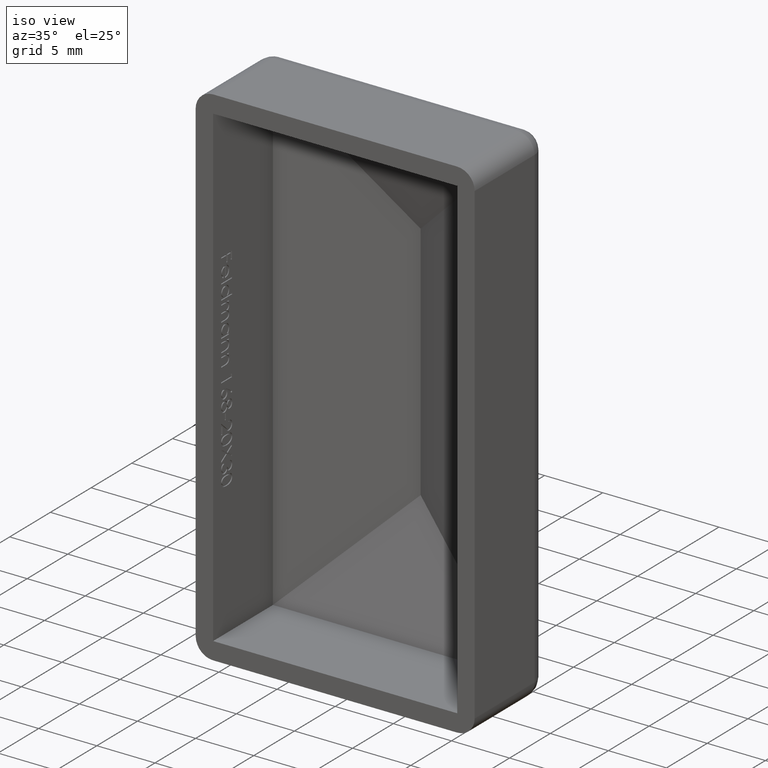
[diagram: clean part render]
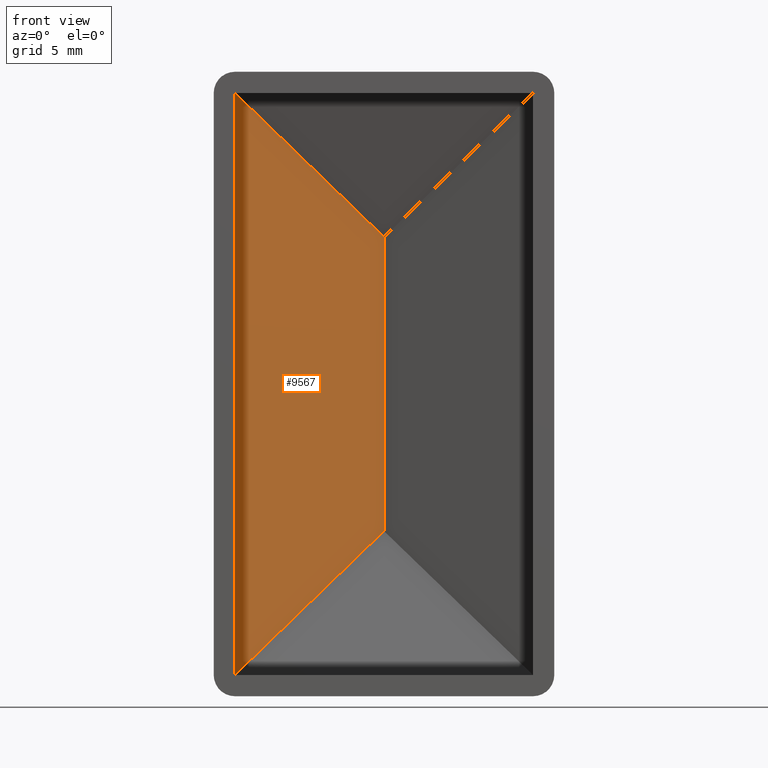
[diagram: tour spotlight — one face highlighted and labeled with its STEP entity id]
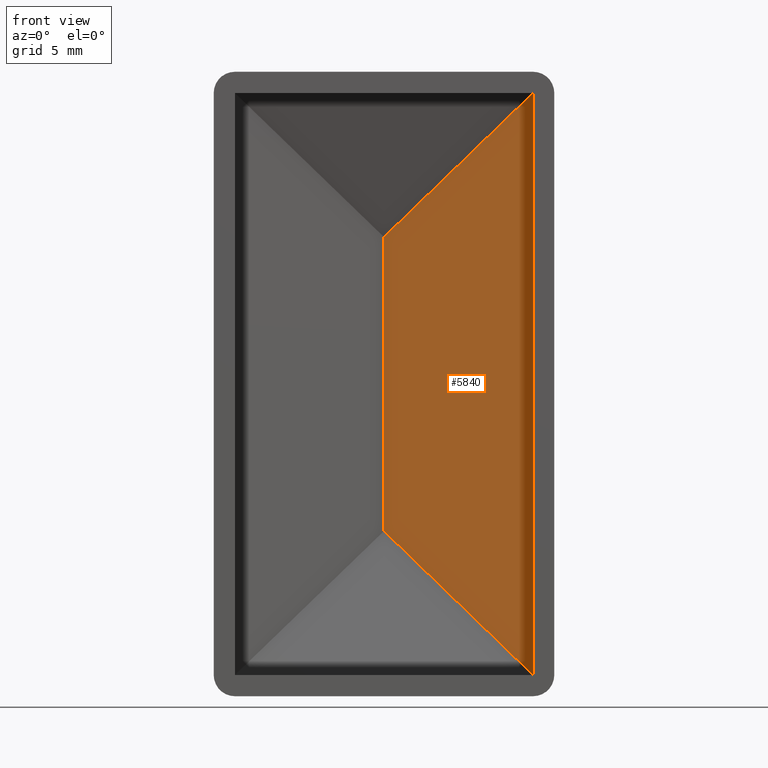
[diagram: tour spotlight — one face highlighted and labeled with its STEP entity id]
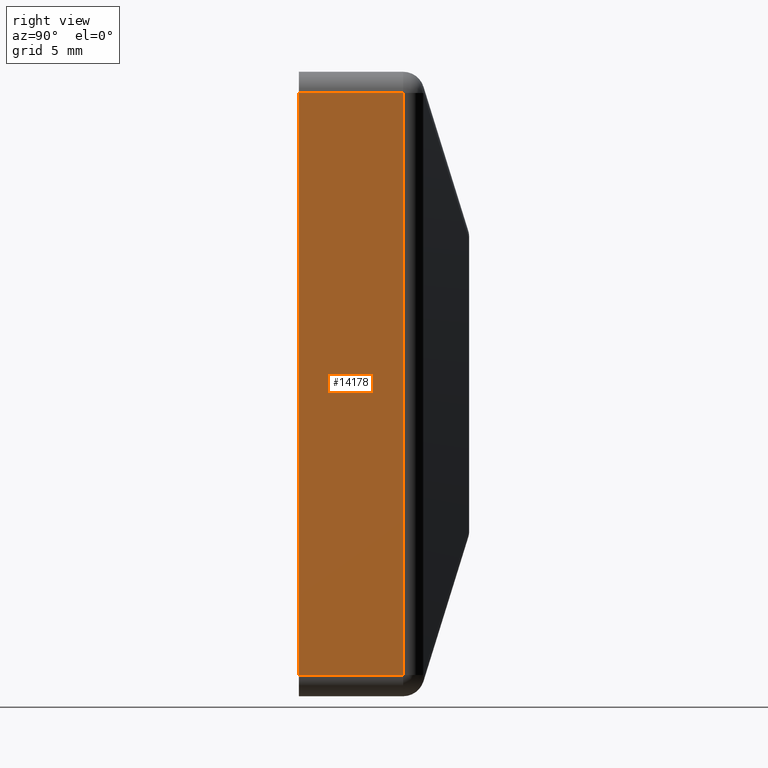
[diagram: tour spotlight — one face highlighted and labeled with its STEP entity id]
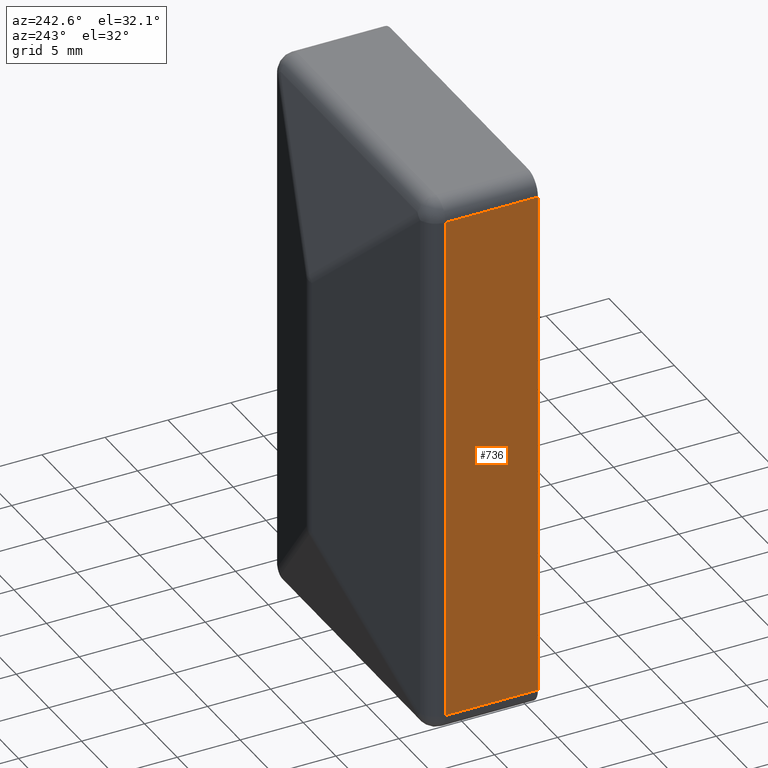
[diagram: tour spotlight — one face highlighted and labeled with its STEP entity id]
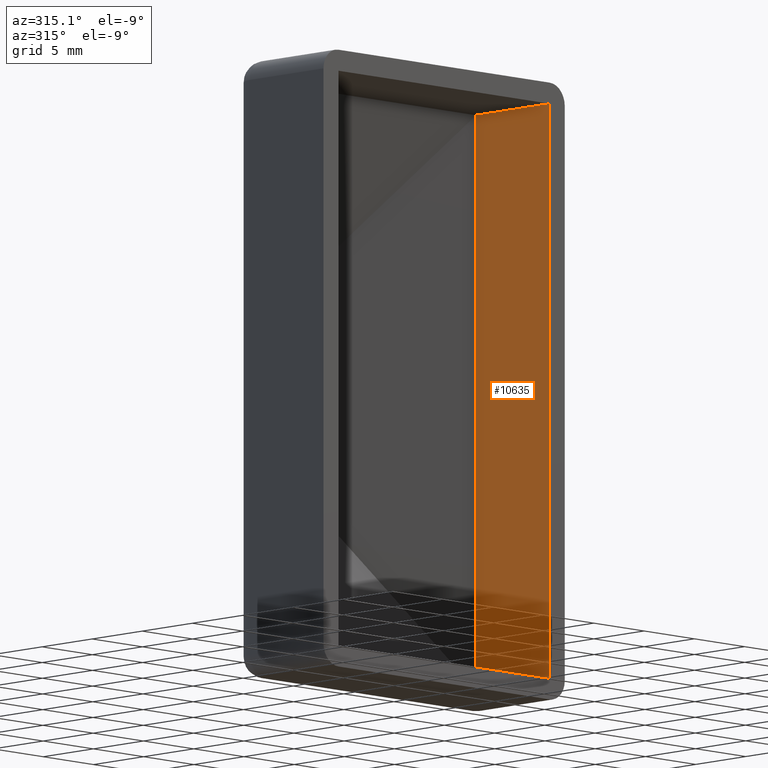
[diagram: tour spotlight — one face highlighted and labeled with its STEP entity id]
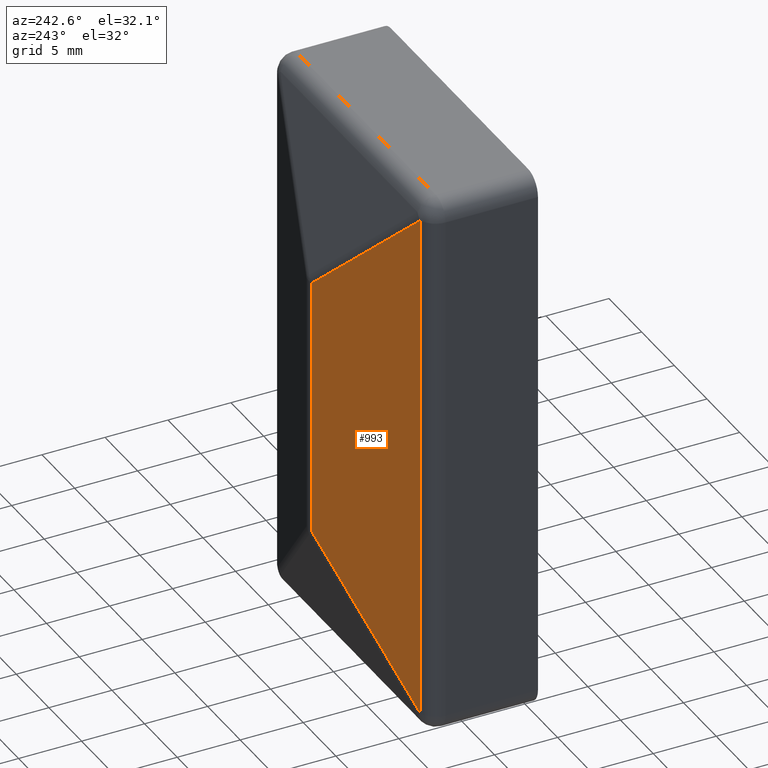
[diagram: tour spotlight — one face highlighted and labeled with its STEP entity id]
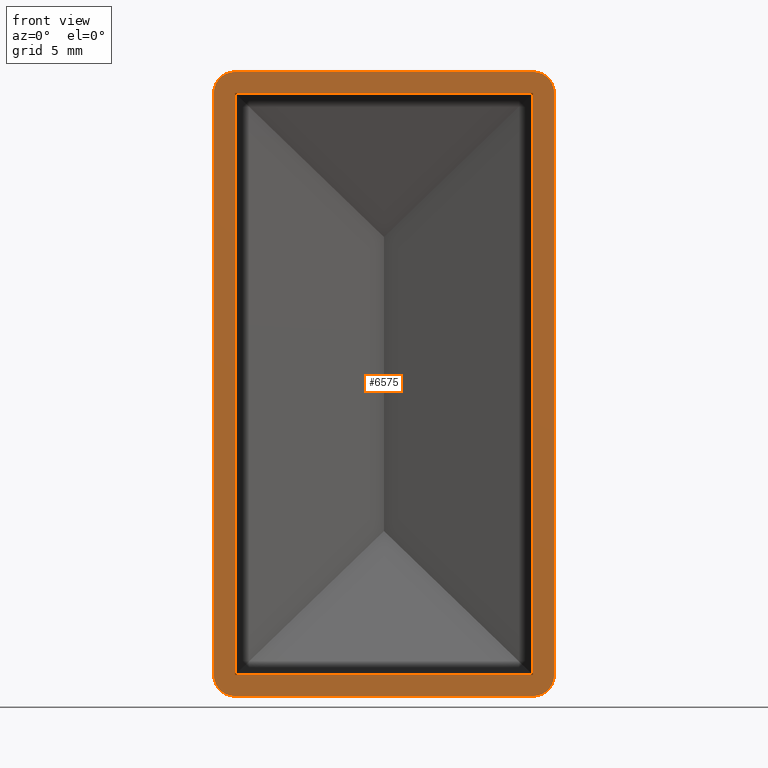
[diagram: tour spotlight — one face highlighted and labeled with its STEP entity id]
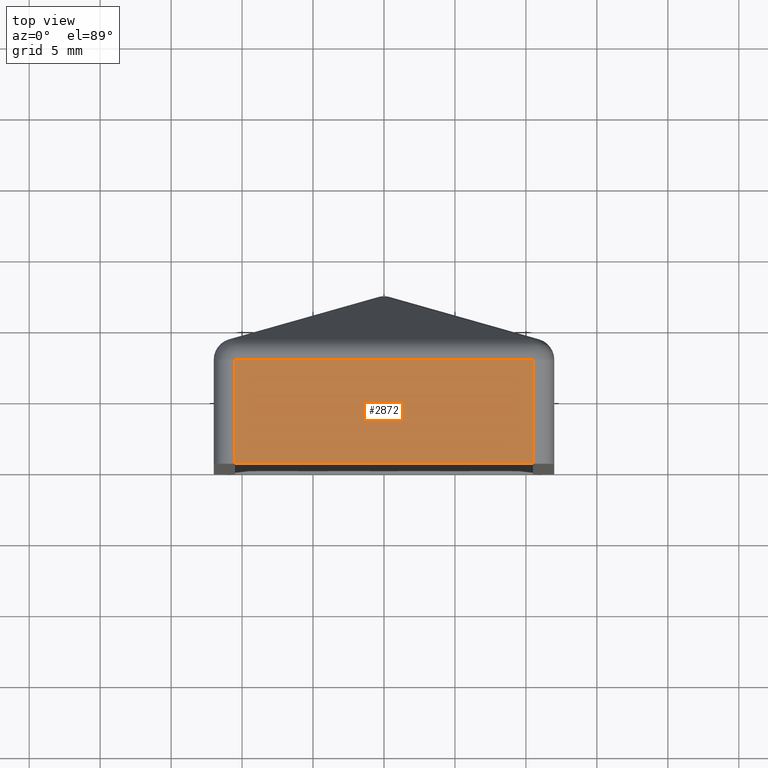
[diagram: tour spotlight — one face highlighted and labeled with its STEP entity id]
A machine part: a face-by-face anatomy tour. The part has 263 B-rep faces; the first image is the clean iso view, then the 8 largest visible faces are spotlighted one at a time (largest first), each with its STEP entity span.

Face 1 — front view, entity #9567. In plain terms, the highlighted planar face has unit normal (0.2873, -0.9578, 0).
Definition (entity closure, byte-faithful):
#183 = PLANE ( 'NONE',  #12115 ) ;
#348 = EDGE_LOOP ( 'NONE', ( #1482, #520, #5931, #13628 ) ) ;
#520 = ORIENTED_EDGE ( 'NONE', *, *, #8659, .T. ) ;
#1482 = ORIENTED_EDGE ( 'NONE', *, *, #9164, .T. ) ;
#2041 = LINE ( 'NONE', #4732, #2873 ) ;
#2142 = FACE_OUTER_BOUND ( 'NONE', #348, .T. ) ;
#2873 = VECTOR ( 'NONE', #13460, 1000.000000000000000 ) ;
#3015 = DIRECTION ( 'NONE',  ( 1.182766006347823109E-16, 3.548298019043460821E-17, 1.000000000000000000 ) ) ;
#3594 = VERTEX_POINT ( 'NONE', #13329 ) ;
#3672 = LINE ( 'NONE', #14014, #13458 ) ;
#3683 = EDGE_CURVE ( 'NONE', #5232, #5365, #2041, .T. ) ;
#3854 = CARTESIAN_POINT ( 'NONE',  ( 5.421010862427527100E-17, 10.50000000000000000, -10.35534212095575590 ) ) ;
#4273 = VERTEX_POINT ( 'NONE', #8368 ) ;
#4707 = DIRECTION ( 'NONE',  ( -0.7029955450421475627, -0.2108986635126437470, 0.6792046947566503512 ) ) ;
#4732 = CARTESIAN_POINT ( 'NONE',  ( -11.21621681187844288, 7.135134956436475662, -21.19197852606920662 ) ) ;
#5232 = VERTEX_POINT ( 'NONE', #3854 ) ;
#5365 = VERTEX_POINT ( 'NONE', #7641 ) ;
#5821 = CARTESIAN_POINT ( 'NONE',  ( -5.930432836189275747, 8.720870149143221894, 16.08507661598340022 ) ) ;
#5931 = ORIENTED_EDGE ( 'NONE', *, *, #12347, .F. ) ;
#6586 = DIRECTION ( 'NONE',  ( 0.2873478855663448295, -0.9578262852211516520, 0.000000000000000000 ) ) ;
#6597 = VECTOR ( 'NONE', #4707, 1000.000000000000000 ) ;
#6938 = LINE ( 'NONE', #5821, #6597 ) ;
#7641 = CARTESIAN_POINT ( 'NONE',  ( -10.50000000000000000, 7.350000000000007638, -20.50000000000000355 ) ) ;
#8368 = CARTESIAN_POINT ( 'NONE',  ( -10.49999999999999467, 7.350000000000009415, 20.50000000000000000 ) ) ;
#8537 = CARTESIAN_POINT ( 'NONE',  ( -10.50000000000000533, 7.350000000000005862, -22.00000000000000000 ) ) ;
#8659 = EDGE_CURVE ( 'NONE', #3594, #4273, #6938, .T. ) ;
#9164 = EDGE_CURVE ( 'NONE', #5232, #3594, #3672, .T. ) ;
#9567 = ADVANCED_FACE ( 'NONE', ( #2142 ), #183, .T. ) ;
#9648 = DIRECTION ( 'NONE',  ( 0.000000000000000000, 0.000000000000000000, 1.000000000000000000 ) ) ;
#9972 = VECTOR ( 'NONE', #3015, 1000.000000000000000 ) ;
#10486 = LINE ( 'NONE', #8537, #9972 ) ;
#12115 = AXIS2_PLACEMENT_3D ( 'NONE', #13347, #6586, #13260 ) ;
#12347 = EDGE_CURVE ( 'NONE', #5365, #4273, #10486, .T. ) ;
#13260 = DIRECTION ( 'NONE',  ( 0.9578262852211515410, 0.2873478855663447740, 0.000000000000000000 ) ) ;
#13329 = CARTESIAN_POINT ( 'NONE',  ( 2.710505431213761085E-16, 10.50000000000000000, 10.35534212095575413 ) ) ;
#13347 = CARTESIAN_POINT ( 'NONE',  ( -10.49999999999998401, 7.350000000000012967, -22.00000000000000000 ) ) ;
#13458 = VECTOR ( 'NONE', #9648, 1000.000000000000000 ) ;
#13460 = DIRECTION ( 'NONE',  ( -0.7029955450421475627, -0.2108986635126437470, -0.6792046947566503512 ) ) ;
#13628 = ORIENTED_EDGE ( 'NONE', *, *, #3683, .F. ) ;
#14014 = CARTESIAN_POINT ( 'NONE',  ( 3.794707603699265519E-16, 10.50000000000000000, -22.00000000000000000 ) ) ;

Face 2 — front view, entity #5840. In plain terms, the highlighted planar face has unit normal (-0.2873, -0.9578, 0).
Definition (entity closure, byte-faithful):
#655 = EDGE_CURVE ( 'NONE', #5232, #2281, #2084, .T. ) ;
#879 = PLANE ( 'NONE',  #5274 ) ;
#1921 = VECTOR ( 'NONE', #11626, 1000.000000000000000 ) ;
#2084 = LINE ( 'NONE', #8011, #6867 ) ;
#2195 = VECTOR ( 'NONE', #5997, 1000.000000000000114 ) ;
#2265 = LINE ( 'NONE', #9362, #1921 ) ;
#2281 = VERTEX_POINT ( 'NONE', #12252 ) ;
#2866 = DIRECTION ( 'NONE',  ( 0.9578262852211515410, -0.2873478855663447185, 0.000000000000000000 ) ) ;
#2984 = ORIENTED_EDGE ( 'NONE', *, *, #9164, .F. ) ;
#3465 = VERTEX_POINT ( 'NONE', #12321 ) ;
#3594 = VERTEX_POINT ( 'NONE', #13329 ) ;
#3672 = LINE ( 'NONE', #14014, #13458 ) ;
#3854 = CARTESIAN_POINT ( 'NONE',  ( 5.421010862427527100E-17, 10.50000000000000000, -10.35534212095575590 ) ) ;
#5085 = LINE ( 'NONE', #6870, #2195 ) ;
#5232 = VERTEX_POINT ( 'NONE', #3854 ) ;
#5274 = AXIS2_PLACEMENT_3D ( 'NONE', #10629, #11834, #2866 ) ;
#5840 = ADVANCED_FACE ( 'NONE', ( #6120 ), #879, .T. ) ;
#5997 = DIRECTION ( 'NONE',  ( 0.7029955450421475627, -0.2108986635126437192, 0.6792046947566503512 ) ) ;
#6120 = FACE_OUTER_BOUND ( 'NONE', #13184, .T. ) ;
#6174 = EDGE_CURVE ( 'NONE', #3594, #3465, #5085, .T. ) ;
#6867 = VECTOR ( 'NONE', #12522, 1000.000000000000114 ) ;
#6870 = CARTESIAN_POINT ( 'NONE',  ( -15.44895998740508780, 15.13468799622151550, -4.570792513260271583 ) ) ;
#8011 = CARTESIAN_POINT ( 'NONE',  ( -0.6195615678548944683, 10.68586847035646947, -9.756747821823166689 ) ) ;
#9164 = EDGE_CURVE ( 'NONE', #5232, #3594, #3672, .T. ) ;
#9362 = CARTESIAN_POINT ( 'NONE',  ( 10.49999999999999645, 7.350000000000009415, -22.00000000000000000 ) ) ;
#9648 = DIRECTION ( 'NONE',  ( 0.000000000000000000, 0.000000000000000000, 1.000000000000000000 ) ) ;
#10075 = ORIENTED_EDGE ( 'NONE', *, *, #6174, .F. ) ;
#10629 = CARTESIAN_POINT ( 'NONE',  ( 3.794707603699265519E-16, 10.50000000000000000, -22.00000000000000000 ) ) ;
#10661 = ORIENTED_EDGE ( 'NONE', *, *, #655, .T. ) ;
#11626 = DIRECTION ( 'NONE',  ( 7.885106708985487801E-17, -2.365532012695639931E-17, 1.000000000000000000 ) ) ;
#11834 = DIRECTION ( 'NONE',  ( -0.2873478855663447740, -0.9578262852211516520, 0.000000000000000000 ) ) ;
#12252 = CARTESIAN_POINT ( 'NONE',  ( 10.49999999999999467, 7.350000000000011191, -20.50000000000000000 ) ) ;
#12321 = CARTESIAN_POINT ( 'NONE',  ( 10.49999999999999645, 7.350000000000009415, 20.50000000000000355 ) ) ;
#12522 = DIRECTION ( 'NONE',  ( 0.7029955450421475627, -0.2108986635126437192, -0.6792046947566503512 ) ) ;
#13184 = EDGE_LOOP ( 'NONE', ( #14090, #10075, #2984, #10661 ) ) ;
#13329 = CARTESIAN_POINT ( 'NONE',  ( 2.710505431213761085E-16, 10.50000000000000000, 10.35534212095575413 ) ) ;
#13458 = VECTOR ( 'NONE', #9648, 1000.000000000000000 ) ;
#14014 = CARTESIAN_POINT ( 'NONE',  ( 3.794707603699265519E-16, 10.50000000000000000, -22.00000000000000000 ) ) ;
#14090 = ORIENTED_EDGE ( 'NONE', *, *, #14149, .T. ) ;
#14149 = EDGE_CURVE ( 'NONE', #2281, #3465, #2265, .T. ) ;

Face 3 — right view, entity #14178. In plain terms, the highlighted planar face has unit normal (-1, 0, 0).
Definition (entity closure, byte-faithful):
#62 = VECTOR ( 'NONE', #6354, 1000.000000000000000 ) ;
#1163 = EDGE_CURVE ( 'NONE', #10963, #5137, #9088, .T. ) ;
#1818 = VERTEX_POINT ( 'NONE', #5347 ) ;
#1966 = VERTEX_POINT ( 'NONE', #12222 ) ;
#2101 = LINE ( 'NONE', #6574, #6545 ) ;
#3578 = ORIENTED_EDGE ( 'NONE', *, *, #13288, .T. ) ;
#3805 = ORIENTED_EDGE ( 'NONE', *, *, #1163, .T. ) ;
#4552 = LINE ( 'NONE', #9276, #14124 ) ;
#4594 = AXIS2_PLACEMENT_3D ( 'NONE', #11679, #11732, #10522 ) ;
#5137 = VERTEX_POINT ( 'NONE', #11985 ) ;
#5341 = CARTESIAN_POINT ( 'NONE',  ( 11.99999999999999645, 0.000000000000000000, -22.00000000000000000 ) ) ;
#5347 = CARTESIAN_POINT ( 'NONE',  ( 12.00000000000001954, 7.350000000000001421, 20.49999999999999645 ) ) ;
#6354 = DIRECTION ( 'NONE',  ( -7.885106708985487801E-17, -0.000000000000000000, -1.000000000000000000 ) ) ;
#6367 = FACE_OUTER_BOUND ( 'NONE', #6447, .T. ) ;
#6447 = EDGE_LOOP ( 'NONE', ( #14118, #3805, #3578, #10888 ) ) ;
#6545 = VECTOR ( 'NONE', #12154, 1000.000000000000000 ) ;
#6556 = LINE ( 'NONE', #5341, #62 ) ;
#6574 = CARTESIAN_POINT ( 'NONE',  ( 12.00000000000001954, 7.350000000000001421, -22.00000000000000000 ) ) ;
#8096 = DIRECTION ( 'NONE',  ( 0.000000000000000000, -1.000000000000000000, 0.000000000000000000 ) ) ;
#9088 = LINE ( 'NONE', #10307, #14056 ) ;
#9276 = CARTESIAN_POINT ( 'NONE',  ( 12.00000000000000000, 30.00000000000000000, 20.49999999999999645 ) ) ;
#10000 = EDGE_CURVE ( 'NONE', #1818, #1966, #4552, .T. ) ;
#10307 = CARTESIAN_POINT ( 'NONE',  ( 11.99999999999999645, 30.00000000000000000, -20.49999999999999645 ) ) ;
#10522 = DIRECTION ( 'NONE',  ( 7.885106708985487801E-17, 0.000000000000000000, 1.000000000000000000 ) ) ;
#10574 = PLANE ( 'NONE',  #4594 ) ;
#10575 = CARTESIAN_POINT ( 'NONE',  ( 11.99999999999999645, 0.000000000000000000, -20.49999999999999645 ) ) ;
#10888 = ORIENTED_EDGE ( 'NONE', *, *, #10000, .T. ) ;
#10963 = VERTEX_POINT ( 'NONE', #10575 ) ;
#11679 = CARTESIAN_POINT ( 'NONE',  ( 11.99999999999999645, 30.00000000000000000, -22.00000000000000000 ) ) ;
#11732 = DIRECTION ( 'NONE',  ( -1.000000000000000000, 0.000000000000000000, 7.885106708985487801E-17 ) ) ;
#11985 = CARTESIAN_POINT ( 'NONE',  ( 12.00000000000001954, 7.350000000000001421, -20.49999999999999645 ) ) ;
#12154 = DIRECTION ( 'NONE',  ( -0.000000000000000000, -0.000000000000000000, 1.000000000000000000 ) ) ;
#12222 = CARTESIAN_POINT ( 'NONE',  ( 12.00000000000000000, 0.000000000000000000, 20.49999999999999645 ) ) ;
#12876 = EDGE_CURVE ( 'NONE', #1966, #10963, #6556, .T. ) ;
#13288 = EDGE_CURVE ( 'NONE', #5137, #1818, #2101, .T. ) ;
#13429 = DIRECTION ( 'NONE',  ( -0.000000000000000000, 1.000000000000000000, -0.000000000000000000 ) ) ;
#14056 = VECTOR ( 'NONE', #13429, 1000.000000000000000 ) ;
#14118 = ORIENTED_EDGE ( 'NONE', *, *, #12876, .T. ) ;
#14124 = VECTOR ( 'NONE', #8096, 1000.000000000000000 ) ;
#14178 = ADVANCED_FACE ( 'NONE', ( #6367 ), #10574, .F. ) ;

Face 4 — auxiliary view, entity #736. In plain terms, the highlighted planar face has unit normal (1, 0, -0).
Definition (entity closure, byte-faithful):
#190 = VECTOR ( 'NONE', #5617, 1000.000000000000000 ) ;
#447 = CARTESIAN_POINT ( 'NONE',  ( -11.99999999999998224, 7.350000000000012967, 20.49999999999999645 ) ) ;
#736 = ADVANCED_FACE ( 'NONE', ( #6358 ), #1501, .F. ) ;
#849 = ORIENTED_EDGE ( 'NONE', *, *, #1514, .T. ) ;
#1098 = ORIENTED_EDGE ( 'NONE', *, *, #10812, .T. ) ;
#1501 = PLANE ( 'NONE',  #9888 ) ;
#1514 = EDGE_CURVE ( 'NONE', #2850, #3690, #1562, .T. ) ;
#1562 = LINE ( 'NONE', #5466, #190 ) ;
#1823 = LINE ( 'NONE', #13778, #9175 ) ;
#2439 = ORIENTED_EDGE ( 'NONE', *, *, #3861, .F. ) ;
#2606 = CARTESIAN_POINT ( 'NONE',  ( -12.00000000000000533, 0.000000000000000000, -20.49999999999999645 ) ) ;
#2676 = CARTESIAN_POINT ( 'NONE',  ( -12.00000000000000000, 30.00000000000000000, 20.49999999999999645 ) ) ;
#2850 = VERTEX_POINT ( 'NONE', #2606 ) ;
#3690 = VERTEX_POINT ( 'NONE', #12519 ) ;
#3861 = EDGE_CURVE ( 'NONE', #6983, #4203, #10418, .T. ) ;
#4203 = VERTEX_POINT ( 'NONE', #447 ) ;
#5112 = CARTESIAN_POINT ( 'NONE',  ( -11.99999999999998224, 7.350000000000012967, -20.49999999999999645 ) ) ;
#5466 = CARTESIAN_POINT ( 'NONE',  ( -12.00000000000000533, 0.000000000000000000, -22.00000000000000000 ) ) ;
#5617 = DIRECTION ( 'NONE',  ( 1.182766006347823109E-16, 0.000000000000000000, 1.000000000000000000 ) ) ;
#5980 = DIRECTION ( 'NONE',  ( -1.182766006347823109E-16, 0.000000000000000000, -1.000000000000000000 ) ) ;
#6358 = FACE_OUTER_BOUND ( 'NONE', #9540, .T. ) ;
#6983 = VERTEX_POINT ( 'NONE', #5112 ) ;
#7219 = DIRECTION ( 'NONE',  ( 0.000000000000000000, -1.000000000000000000, 0.000000000000000000 ) ) ;
#8576 = EDGE_CURVE ( 'NONE', #6983, #2850, #1823, .T. ) ;
#9175 = VECTOR ( 'NONE', #7219, 1000.000000000000000 ) ;
#9409 = DIRECTION ( 'NONE',  ( 1.000000000000000000, 0.000000000000000000, -1.182766006347823109E-16 ) ) ;
#9540 = EDGE_LOOP ( 'NONE', ( #2439, #13882, #849, #1098 ) ) ;
#9888 = AXIS2_PLACEMENT_3D ( 'NONE', #13832, #9409, #5980 ) ;
#9941 = CARTESIAN_POINT ( 'NONE',  ( -11.99999999999998224, 7.350000000000012967, -22.00000000000000000 ) ) ;
#10084 = DIRECTION ( 'NONE',  ( -0.000000000000000000, -0.000000000000000000, 1.000000000000000000 ) ) ;
#10418 = LINE ( 'NONE', #9941, #13019 ) ;
#10812 = EDGE_CURVE ( 'NONE', #3690, #4203, #11390, .T. ) ;
#11390 = LINE ( 'NONE', #2676, #13761 ) ;
#11627 = DIRECTION ( 'NONE',  ( -0.000000000000000000, 1.000000000000000000, -0.000000000000000000 ) ) ;
#12519 = CARTESIAN_POINT ( 'NONE',  ( -12.00000000000000000, 0.000000000000000000, 20.49999999999999645 ) ) ;
#13019 = VECTOR ( 'NONE', #10084, 1000.000000000000000 ) ;
#13761 = VECTOR ( 'NONE', #11627, 1000.000000000000000 ) ;
#13778 = CARTESIAN_POINT ( 'NONE',  ( -12.00000000000000533, 30.00000000000000000, -20.49999999999999645 ) ) ;
#13832 = CARTESIAN_POINT ( 'NONE',  ( -12.00000000000000533, 30.00000000000000000, -22.00000000000000000 ) ) ;
#13882 = ORIENTED_EDGE ( 'NONE', *, *, #8576, .T. ) ;

Face 5 — auxiliary view, entity #10635. In plain terms, the highlighted planar face has unit normal (-1, 0, 0).
Definition (entity closure, byte-faithful):
#233 = EDGE_CURVE ( 'NONE', #3465, #5126, #9954, .T. ) ;
#1539 = DIRECTION ( 'NONE',  ( 0.000000000000000000, -1.000000000000000000, 0.000000000000000000 ) ) ;
#1702 = CARTESIAN_POINT ( 'NONE',  ( 10.50000000000000000, 30.00000000000000000, 20.49999999999999645 ) ) ;
#1742 = CARTESIAN_POINT ( 'NONE',  ( 10.49999999999999645, 0.000000000000000000, -20.49999999999999645 ) ) ;
#1921 = VECTOR ( 'NONE', #11626, 1000.000000000000000 ) ;
#1935 = DIRECTION ( 'NONE',  ( 0.000000000000000000, -1.000000000000000000, 0.000000000000000000 ) ) ;
#2019 = AXIS2_PLACEMENT_3D ( 'NONE', #6570, #7539, #3110 ) ;
#2057 = ORIENTED_EDGE ( 'NONE', *, *, #6070, .F. ) ;
#2265 = LINE ( 'NONE', #9362, #1921 ) ;
#2281 = VERTEX_POINT ( 'NONE', #12252 ) ;
#2386 = VERTEX_POINT ( 'NONE', #1742 ) ;
#3110 = DIRECTION ( 'NONE',  ( 7.885106708985487801E-17, 0.000000000000000000, 1.000000000000000000 ) ) ;
#3276 = VECTOR ( 'NONE', #1935, 1000.000000000000000 ) ;
#3465 = VERTEX_POINT ( 'NONE', #12321 ) ;
#3528 = VECTOR ( 'NONE', #1539, 1000.000000000000000 ) ;
#4081 = ORIENTED_EDGE ( 'NONE', *, *, #233, .F. ) ;
#5126 = VERTEX_POINT ( 'NONE', #11930 ) ;
#5419 = ORIENTED_EDGE ( 'NONE', *, *, #8516, .T. ) ;
#5793 = LINE ( 'NONE', #11011, #6479 ) ;
#6070 = EDGE_CURVE ( 'NONE', #5126, #2386, #5793, .T. ) ;
#6112 = ORIENTED_EDGE ( 'NONE', *, *, #14149, .F. ) ;
#6438 = LINE ( 'NONE', #12641, #3528 ) ;
#6479 = VECTOR ( 'NONE', #13121, 1000.000000000000000 ) ;
#6570 = CARTESIAN_POINT ( 'NONE',  ( 10.49999999999999645, 30.00000000000000000, -22.00000000000000000 ) ) ;
#7539 = DIRECTION ( 'NONE',  ( -1.000000000000000000, 0.000000000000000000, 7.885106708985487801E-17 ) ) ;
#8516 = EDGE_CURVE ( 'NONE', #2281, #2386, #6438, .T. ) ;
#9362 = CARTESIAN_POINT ( 'NONE',  ( 10.49999999999999645, 7.350000000000009415, -22.00000000000000000 ) ) ;
#9954 = LINE ( 'NONE', #1702, #3276 ) ;
#10635 = ADVANCED_FACE ( 'NONE', ( #13939 ), #12048, .T. ) ;
#11011 = CARTESIAN_POINT ( 'NONE',  ( 10.49999999999999645, 0.000000000000000000, -22.00000000000000000 ) ) ;
#11626 = DIRECTION ( 'NONE',  ( 7.885106708985487801E-17, -2.365532012695639931E-17, 1.000000000000000000 ) ) ;
#11768 = EDGE_LOOP ( 'NONE', ( #2057, #4081, #6112, #5419 ) ) ;
#11930 = CARTESIAN_POINT ( 'NONE',  ( 10.50000000000000000, 0.000000000000000000, 20.49999999999999645 ) ) ;
#12048 = PLANE ( 'NONE',  #2019 ) ;
#12252 = CARTESIAN_POINT ( 'NONE',  ( 10.49999999999999467, 7.350000000000011191, -20.50000000000000000 ) ) ;
#12321 = CARTESIAN_POINT ( 'NONE',  ( 10.49999999999999645, 7.350000000000009415, 20.50000000000000355 ) ) ;
#12641 = CARTESIAN_POINT ( 'NONE',  ( 10.49999999999999645, 30.00000000000000000, -20.49999999999999645 ) ) ;
#13121 = DIRECTION ( 'NONE',  ( -7.885106708985487801E-17, 0.000000000000000000, -1.000000000000000000 ) ) ;
#13939 = FACE_OUTER_BOUND ( 'NONE', #11768, .T. ) ;
#14149 = EDGE_CURVE ( 'NONE', #2281, #3465, #2265, .T. ) ;

Face 6 — auxiliary view, entity #993. In plain terms, the highlighted planar face has unit normal (0.2873, -0.9578, 0).
Definition (entity closure, byte-faithful):
#132 = DIRECTION ( 'NONE',  ( 0.9578262852211515410, 0.2873478855663447740, 0.000000000000000000 ) ) ;
#638 = CARTESIAN_POINT ( 'NONE',  ( -0.4310218283495166891, 11.93673942783172848, -10.35534212095575590 ) ) ;
#993 = ADVANCED_FACE ( 'NONE', ( #2571 ), #11149, .F. ) ;
#1014 = DIRECTION ( 'NONE',  ( -0.000000000000000000, -0.000000000000000000, 1.000000000000000000 ) ) ;
#1285 = VERTEX_POINT ( 'NONE', #638 ) ;
#1484 = VECTOR ( 'NONE', #12670, 1000.000000000000000 ) ;
#1697 = CARTESIAN_POINT ( 'NONE',  ( 9.361787841540055055, 14.87458232879859388, 0.8939417613723181777 ) ) ;
#1845 = CARTESIAN_POINT ( 'NONE',  ( -0.4310218283495175218, 11.93673942783172848, -22.00000000000000000 ) ) ;
#2353 = ORIENTED_EDGE ( 'NONE', *, *, #3319, .T. ) ;
#2571 = FACE_OUTER_BOUND ( 'NONE', #3858, .T. ) ;
#3319 = EDGE_CURVE ( 'NONE', #7283, #3575, #9063, .T. ) ;
#3500 = VERTEX_POINT ( 'NONE', #7028 ) ;
#3575 = VERTEX_POINT ( 'NONE', #12236 ) ;
#3858 = EDGE_LOOP ( 'NONE', ( #10729, #6900, #12097, #2353 ) ) ;
#4975 = CARTESIAN_POINT ( 'NONE',  ( -11.64723864022795929, 8.571874384268204139, -21.19197852606920662 ) ) ;
#5024 = DIRECTION ( 'NONE',  ( -0.000000000000000000, -0.000000000000000000, 1.000000000000000000 ) ) ;
#5383 = CARTESIAN_POINT ( 'NONE',  ( -10.93102182834950042, 8.786739427831740556, 20.49999999999998224 ) ) ;
#6047 = LINE ( 'NONE', #1845, #7608 ) ;
#6076 = EDGE_CURVE ( 'NONE', #3500, #7283, #10576, .T. ) ;
#6766 = CARTESIAN_POINT ( 'NONE',  ( -10.93102182834950042, 8.786739427831740556, -22.00000000000000000 ) ) ;
#6900 = ORIENTED_EDGE ( 'NONE', *, *, #7943, .T. ) ;
#7028 = CARTESIAN_POINT ( 'NONE',  ( -10.93102182834950042, 8.786739427831740556, -20.49999999999999645 ) ) ;
#7135 = AXIS2_PLACEMENT_3D ( 'NONE', #6766, #8894, #132 ) ;
#7283 = VERTEX_POINT ( 'NONE', #5383 ) ;
#7330 = VECTOR ( 'NONE', #1014, 1000.000000000000000 ) ;
#7608 = VECTOR ( 'NONE', #5024, 1000.000000000000000 ) ;
#7943 = EDGE_CURVE ( 'NONE', #1285, #3500, #11086, .T. ) ;
#8894 = DIRECTION ( 'NONE',  ( 0.2873478855663448295, -0.9578262852211516520, 0.000000000000000000 ) ) ;
#9063 = LINE ( 'NONE', #1697, #14204 ) ;
#10393 = EDGE_CURVE ( 'NONE', #1285, #3575, #6047, .T. ) ;
#10576 = LINE ( 'NONE', #14100, #7330 ) ;
#10729 = ORIENTED_EDGE ( 'NONE', *, *, #10393, .F. ) ;
#11086 = LINE ( 'NONE', #4975, #1484 ) ;
#11149 = PLANE ( 'NONE',  #7135 ) ;
#11503 = DIRECTION ( 'NONE',  ( 0.7029955450421475627, 0.2108986635126437470, -0.6792046947566503512 ) ) ;
#12097 = ORIENTED_EDGE ( 'NONE', *, *, #6076, .T. ) ;
#12236 = CARTESIAN_POINT ( 'NONE',  ( -0.4310218283495175773, 11.93673942783172848, 10.35534212095574169 ) ) ;
#12670 = DIRECTION ( 'NONE',  ( -0.7029955450421475627, -0.2108986635126437470, -0.6792046947566503512 ) ) ;
#14100 = CARTESIAN_POINT ( 'NONE',  ( -10.93102182834950042, 8.786739427831740556, -22.00000000000000000 ) ) ;
#14204 = VECTOR ( 'NONE', #11503, 1000.000000000000000 ) ;

Face 7 — front view, entity #6575. In plain terms, the highlighted planar face has unit normal (0, 1, 0).
Definition (entity closure, byte-faithful):
#62 = VECTOR ( 'NONE', #6354, 1000.000000000000000 ) ;
#66 = CIRCLE ( 'NONE', #11996, 1.500000000000001332 ) ;
#190 = VECTOR ( 'NONE', #5617, 1000.000000000000000 ) ;
#261 = VERTEX_POINT ( 'NONE', #12917 ) ;
#359 = CIRCLE ( 'NONE', #9531, 1.500000000000001332 ) ;
#480 = ORIENTED_EDGE ( 'NONE', *, *, #6070, .T. ) ;
#557 = DIRECTION ( 'NONE',  ( 1.000000000000000000, 0.000000000000000000, 0.000000000000000000 ) ) ;
#1138 = CARTESIAN_POINT ( 'NONE',  ( -12.00000000000000533, 0.000000000000000000, -20.49999999999999645 ) ) ;
#1180 = FACE_BOUND ( 'NONE', #4328, .T. ) ;
#1514 = EDGE_CURVE ( 'NONE', #2850, #3690, #1562, .T. ) ;
#1562 = LINE ( 'NONE', #5466, #190 ) ;
#1606 = DIRECTION ( 'NONE',  ( 0.000000000000000000, 0.000000000000000000, 1.000000000000000000 ) ) ;
#1742 = CARTESIAN_POINT ( 'NONE',  ( 10.49999999999999645, 0.000000000000000000, -20.49999999999999645 ) ) ;
#1794 = DIRECTION ( 'NONE',  ( 2.312964634635740689E-15, 0.000000000000000000, 1.000000000000000000 ) ) ;
#1889 = CARTESIAN_POINT ( 'NONE',  ( 10.50000000000000000, 0.000000000000000000, 20.49999999999999645 ) ) ;
#1928 = VERTEX_POINT ( 'NONE', #3443 ) ;
#1966 = VERTEX_POINT ( 'NONE', #12222 ) ;
#2207 = CARTESIAN_POINT ( 'NONE',  ( 10.49999999999999645, 0.000000000000000000, -20.49999999999999645 ) ) ;
#2211 = EDGE_CURVE ( 'NONE', #3696, #1928, #8220, .T. ) ;
#2386 = VERTEX_POINT ( 'NONE', #1742 ) ;
#2403 = EDGE_CURVE ( 'NONE', #2850, #261, #359, .T. ) ;
#2446 = CARTESIAN_POINT ( 'NONE',  ( -10.50000000000000533, 0.000000000000000000, -20.49999999999999645 ) ) ;
#2606 = CARTESIAN_POINT ( 'NONE',  ( -12.00000000000000533, 0.000000000000000000, -20.49999999999999645 ) ) ;
#2655 = EDGE_CURVE ( 'NONE', #2386, #3696, #10985, .T. ) ;
#2850 = VERTEX_POINT ( 'NONE', #2606 ) ;
#2977 = DIRECTION ( 'NONE',  ( -0.000000000000000000, -1.000000000000000000, -0.000000000000000000 ) ) ;
#3027 = ORIENTED_EDGE ( 'NONE', *, *, #13071, .F. ) ;
#3298 = DIRECTION ( 'NONE',  ( 0.000000000000000000, 0.000000000000000000, 1.000000000000000000 ) ) ;
#3443 = CARTESIAN_POINT ( 'NONE',  ( -10.50000000000000000, 0.000000000000000000, 20.49999999999999645 ) ) ;
#3467 = VECTOR ( 'NONE', #557, 1000.000000000000000 ) ;
#3547 = FACE_OUTER_BOUND ( 'NONE', #8363, .T. ) ;
#3690 = VERTEX_POINT ( 'NONE', #12519 ) ;
#3696 = VERTEX_POINT ( 'NONE', #2446 ) ;
#4328 = EDGE_LOOP ( 'NONE', ( #480, #7653, #8259, #6244 ) ) ;
#4587 = EDGE_CURVE ( 'NONE', #6707, #3690, #66, .T. ) ;
#4596 = CARTESIAN_POINT ( 'NONE',  ( 0.000000000000000000, 0.000000000000000000, 0.000000000000000000 ) ) ;
#4622 = VECTOR ( 'NONE', #8692, 1000.000000000000000 ) ;
#5126 = VERTEX_POINT ( 'NONE', #11930 ) ;
#5184 = CARTESIAN_POINT ( 'NONE',  ( -10.50000000000000533, 0.000000000000000000, -22.00000000000000000 ) ) ;
#5341 = CARTESIAN_POINT ( 'NONE',  ( 11.99999999999999645, 0.000000000000000000, -22.00000000000000000 ) ) ;
#5423 = AXIS2_PLACEMENT_3D ( 'NONE', #1889, #2977, #1794 ) ;
#5466 = CARTESIAN_POINT ( 'NONE',  ( -12.00000000000000533, 0.000000000000000000, -22.00000000000000000 ) ) ;
#5609 = PLANE ( 'NONE',  #7303 ) ;
#5617 = DIRECTION ( 'NONE',  ( 1.182766006347823109E-16, 0.000000000000000000, 1.000000000000000000 ) ) ;
#5793 = LINE ( 'NONE', #11011, #6479 ) ;
#5934 = VECTOR ( 'NONE', #8430, 1000.000000000000000 ) ;
#5949 = DIRECTION ( 'NONE',  ( -0.000000000000000000, -1.000000000000000000, -0.000000000000000000 ) ) ;
#6030 = ORIENTED_EDGE ( 'NONE', *, *, #1514, .F. ) ;
#6070 = EDGE_CURVE ( 'NONE', #5126, #2386, #5793, .T. ) ;
#6142 = CARTESIAN_POINT ( 'NONE',  ( 10.49999999999999645, 0.000000000000000000, -22.00000000000000000 ) ) ;
#6244 = ORIENTED_EDGE ( 'NONE', *, *, #6980, .T. ) ;
#6331 = VECTOR ( 'NONE', #12878, 1000.000000000000000 ) ;
#6354 = DIRECTION ( 'NONE',  ( -7.885106708985487801E-17, -0.000000000000000000, -1.000000000000000000 ) ) ;
#6479 = VECTOR ( 'NONE', #13121, 1000.000000000000000 ) ;
#6556 = LINE ( 'NONE', #5341, #62 ) ;
#6575 = ADVANCED_FACE ( 'NONE', ( #1180, #3547 ), #5609, .F. ) ;
#6626 = EDGE_CURVE ( 'NONE', #13250, #10963, #13646, .T. ) ;
#6698 = DIRECTION ( 'NONE',  ( 0.000000000000000000, -0.000000000000000000, 1.000000000000000000 ) ) ;
#6707 = VERTEX_POINT ( 'NONE', #12786 ) ;
#6919 = ORIENTED_EDGE ( 'NONE', *, *, #7476, .F. ) ;
#6980 = EDGE_CURVE ( 'NONE', #1928, #5126, #13319, .T. ) ;
#7098 = CARTESIAN_POINT ( 'NONE',  ( -12.00000000000000000, 0.000000000000000000, 22.00000000000000000 ) ) ;
#7211 = DIRECTION ( 'NONE',  ( -1.000000000000000000, -0.000000000000000000, -0.000000000000000000 ) ) ;
#7303 = AXIS2_PLACEMENT_3D ( 'NONE', #4596, #13279, #6698 ) ;
#7320 = DIRECTION ( 'NONE',  ( -0.000000000000000000, -1.000000000000000000, -0.000000000000000000 ) ) ;
#7476 = EDGE_CURVE ( 'NONE', #13250, #261, #8520, .T. ) ;
#7653 = ORIENTED_EDGE ( 'NONE', *, *, #2655, .T. ) ;
#7838 = EDGE_CURVE ( 'NONE', #1966, #12189, #8152, .T. ) ;
#8152 = CIRCLE ( 'NONE', #5423, 1.500000000000001332 ) ;
#8220 = LINE ( 'NONE', #5184, #6331 ) ;
#8259 = ORIENTED_EDGE ( 'NONE', *, *, #2211, .T. ) ;
#8363 = EDGE_LOOP ( 'NONE', ( #6919, #12940, #10209, #14197, #3027, #13467, #6030, #9143 ) ) ;
#8381 = CARTESIAN_POINT ( 'NONE',  ( -12.00000000000000000, 0.000000000000000000, 20.49999999999999645 ) ) ;
#8430 = DIRECTION ( 'NONE',  ( 1.000000000000000000, -0.000000000000000000, 0.000000000000000000 ) ) ;
#8471 = DIRECTION ( 'NONE',  ( 0.000000000000000000, 0.000000000000000000, 1.000000000000000000 ) ) ;
#8520 = LINE ( 'NONE', #12554, #12131 ) ;
#8692 = DIRECTION ( 'NONE',  ( -1.000000000000000000, 0.000000000000000000, 0.000000000000000000 ) ) ;
#9143 = ORIENTED_EDGE ( 'NONE', *, *, #2403, .T. ) ;
#9434 = LINE ( 'NONE', #7098, #3467 ) ;
#9531 = AXIS2_PLACEMENT_3D ( 'NONE', #12534, #5949, #1606 ) ;
#9592 = CARTESIAN_POINT ( 'NONE',  ( -10.50000000000000000, 0.000000000000000000, 20.49999999999999645 ) ) ;
#9855 = DIRECTION ( 'NONE',  ( -0.000000000000000000, -1.000000000000000000, -0.000000000000000000 ) ) ;
#10209 = ORIENTED_EDGE ( 'NONE', *, *, #12876, .F. ) ;
#10575 = CARTESIAN_POINT ( 'NONE',  ( 11.99999999999999645, 0.000000000000000000, -20.49999999999999645 ) ) ;
#10963 = VERTEX_POINT ( 'NONE', #10575 ) ;
#10985 = LINE ( 'NONE', #1138, #4622 ) ;
#11011 = CARTESIAN_POINT ( 'NONE',  ( 10.49999999999999645, 0.000000000000000000, -22.00000000000000000 ) ) ;
#11264 = AXIS2_PLACEMENT_3D ( 'NONE', #2207, #9855, #3298 ) ;
#11930 = CARTESIAN_POINT ( 'NONE',  ( 10.50000000000000000, 0.000000000000000000, 20.49999999999999645 ) ) ;
#11996 = AXIS2_PLACEMENT_3D ( 'NONE', #9592, #7320, #8471 ) ;
#12131 = VECTOR ( 'NONE', #7211, 1000.000000000000000 ) ;
#12189 = VERTEX_POINT ( 'NONE', #14120 ) ;
#12222 = CARTESIAN_POINT ( 'NONE',  ( 12.00000000000000000, 0.000000000000000000, 20.49999999999999645 ) ) ;
#12519 = CARTESIAN_POINT ( 'NONE',  ( -12.00000000000000000, 0.000000000000000000, 20.49999999999999645 ) ) ;
#12534 = CARTESIAN_POINT ( 'NONE',  ( -10.50000000000000533, 0.000000000000000000, -20.49999999999999645 ) ) ;
#12554 = CARTESIAN_POINT ( 'NONE',  ( -12.00000000000000533, 0.000000000000000000, -22.00000000000000000 ) ) ;
#12786 = CARTESIAN_POINT ( 'NONE',  ( -10.50000000000000000, 0.000000000000000000, 22.00000000000000000 ) ) ;
#12876 = EDGE_CURVE ( 'NONE', #1966, #10963, #6556, .T. ) ;
#12878 = DIRECTION ( 'NONE',  ( 1.182766006347823109E-16, -0.000000000000000000, 1.000000000000000000 ) ) ;
#12917 = CARTESIAN_POINT ( 'NONE',  ( -10.50000000000000533, 0.000000000000000000, -22.00000000000000000 ) ) ;
#12940 = ORIENTED_EDGE ( 'NONE', *, *, #6626, .T. ) ;
#13071 = EDGE_CURVE ( 'NONE', #6707, #12189, #9434, .T. ) ;
#13121 = DIRECTION ( 'NONE',  ( -7.885106708985487801E-17, 0.000000000000000000, -1.000000000000000000 ) ) ;
#13250 = VERTEX_POINT ( 'NONE', #6142 ) ;
#13279 = DIRECTION ( 'NONE',  ( 0.000000000000000000, 1.000000000000000000, 0.000000000000000000 ) ) ;
#13319 = LINE ( 'NONE', #8381, #5934 ) ;
#13467 = ORIENTED_EDGE ( 'NONE', *, *, #4587, .T. ) ;
#13646 = CIRCLE ( 'NONE', #11264, 1.500000000000001332 ) ;
#14120 = CARTESIAN_POINT ( 'NONE',  ( 10.49999999999999822, 0.000000000000000000, 22.00000000000000000 ) ) ;
#14197 = ORIENTED_EDGE ( 'NONE', *, *, #7838, .T. ) ;

Face 8 — top view, entity #2872. In plain terms, the highlighted planar face has unit normal (0, 0, -1).
Definition (entity closure, byte-faithful):
#557 = DIRECTION ( 'NONE',  ( 1.000000000000000000, 0.000000000000000000, 0.000000000000000000 ) ) ;
#566 = DIRECTION ( 'NONE',  ( 1.000000000000000000, -0.000000000000000000, -0.000000000000000000 ) ) ;
#1545 = DIRECTION ( 'NONE',  ( 0.000000000000000000, -1.000000000000000000, 0.000000000000000000 ) ) ;
#1580 = CARTESIAN_POINT ( 'NONE',  ( 10.50000000000000000, 7.350000000000012967, 22.00000000000000000 ) ) ;
#2210 = VECTOR ( 'NONE', #566, 1000.000000000000000 ) ;
#2491 = CARTESIAN_POINT ( 'NONE',  ( -10.50000000000000000, 30.00000000000000000, 22.00000000000000000 ) ) ;
#2671 = VECTOR ( 'NONE', #8677, 1000.000000000000000 ) ;
#2740 = PLANE ( 'NONE',  #3666 ) ;
#2872 = ADVANCED_FACE ( 'NONE', ( #8380 ), #2740, .F. ) ;
#3018 = LINE ( 'NONE', #9698, #2671 ) ;
#3467 = VECTOR ( 'NONE', #557, 1000.000000000000000 ) ;
#3661 = ORIENTED_EDGE ( 'NONE', *, *, #13071, .T. ) ;
#3666 = AXIS2_PLACEMENT_3D ( 'NONE', #13616, #10410, #5918 ) ;
#3691 = EDGE_CURVE ( 'NONE', #9987, #6707, #5647, .T. ) ;
#5194 = EDGE_CURVE ( 'NONE', #9987, #6731, #8897, .T. ) ;
#5647 = LINE ( 'NONE', #2491, #8556 ) ;
#5805 = CARTESIAN_POINT ( 'NONE',  ( -10.50000000000000000, 7.350000000000012967, 22.00000000000000000 ) ) ;
#5918 = DIRECTION ( 'NONE',  ( -1.000000000000000000, 0.000000000000000000, -0.000000000000000000 ) ) ;
#6707 = VERTEX_POINT ( 'NONE', #12786 ) ;
#6731 = VERTEX_POINT ( 'NONE', #1580 ) ;
#7076 = EDGE_CURVE ( 'NONE', #12189, #6731, #3018, .T. ) ;
#7098 = CARTESIAN_POINT ( 'NONE',  ( -12.00000000000000000, 0.000000000000000000, 22.00000000000000000 ) ) ;
#8157 = ORIENTED_EDGE ( 'NONE', *, *, #7076, .T. ) ;
#8380 = FACE_OUTER_BOUND ( 'NONE', #11646, .T. ) ;
#8556 = VECTOR ( 'NONE', #1545, 1000.000000000000000 ) ;
#8677 = DIRECTION ( 'NONE',  ( -0.000000000000000000, 1.000000000000000000, -0.000000000000000000 ) ) ;
#8897 = LINE ( 'NONE', #10556, #2210 ) ;
#9434 = LINE ( 'NONE', #7098, #3467 ) ;
#9698 = CARTESIAN_POINT ( 'NONE',  ( 10.49999999999999822, 30.00000000000000000, 22.00000000000000000 ) ) ;
#9760 = ORIENTED_EDGE ( 'NONE', *, *, #5194, .F. ) ;
#9987 = VERTEX_POINT ( 'NONE', #5805 ) ;
#10410 = DIRECTION ( 'NONE',  ( 0.000000000000000000, 0.000000000000000000, -1.000000000000000000 ) ) ;
#10538 = ORIENTED_EDGE ( 'NONE', *, *, #3691, .T. ) ;
#10556 = CARTESIAN_POINT ( 'NONE',  ( -12.00000000000000533, 7.350000000000012967, 22.00000000000000000 ) ) ;
#11646 = EDGE_LOOP ( 'NONE', ( #3661, #8157, #9760, #10538 ) ) ;
#12189 = VERTEX_POINT ( 'NONE', #14120 ) ;
#12786 = CARTESIAN_POINT ( 'NONE',  ( -10.50000000000000000, 0.000000000000000000, 22.00000000000000000 ) ) ;
#13071 = EDGE_CURVE ( 'NONE', #6707, #12189, #9434, .T. ) ;
#13616 = CARTESIAN_POINT ( 'NONE',  ( -12.00000000000000000, 30.00000000000000000, 22.00000000000000000 ) ) ;
#14120 = CARTESIAN_POINT ( 'NONE',  ( 10.49999999999999822, 0.000000000000000000, 22.00000000000000000 ) ) ;